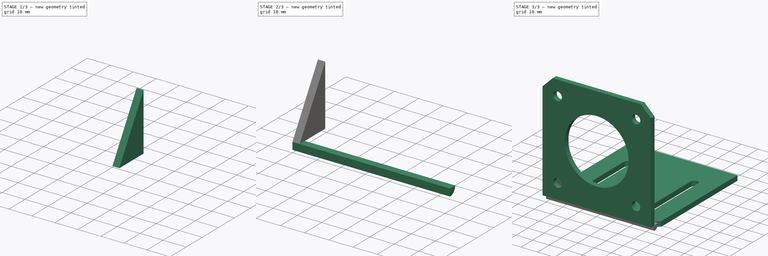
[diagram: build sequence overview — one tinted view per stage of 3, left to right]
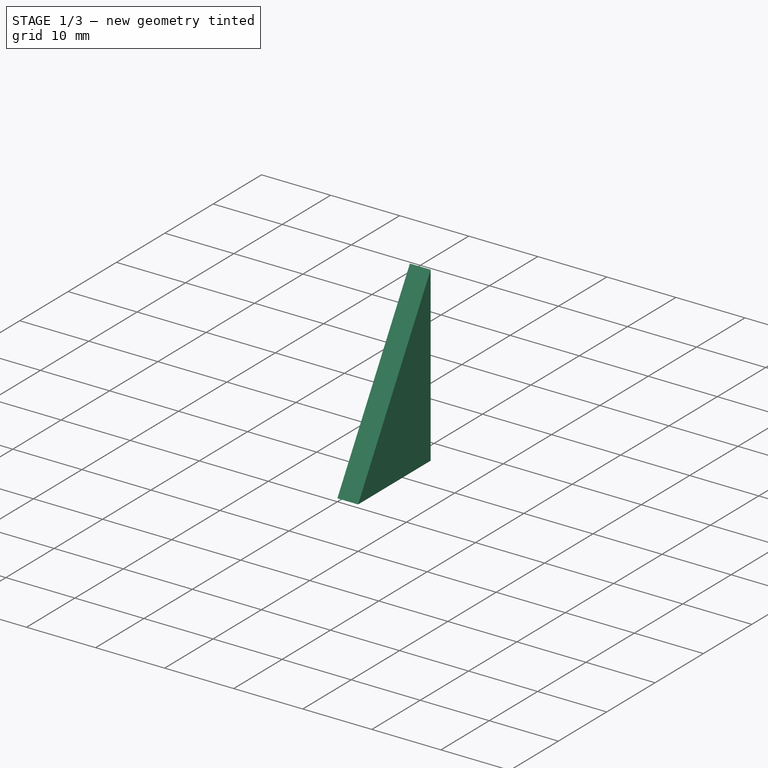
[diagram: stage 1 of 3 — iso view after this stage's code; geometry added in this stage tinted green]
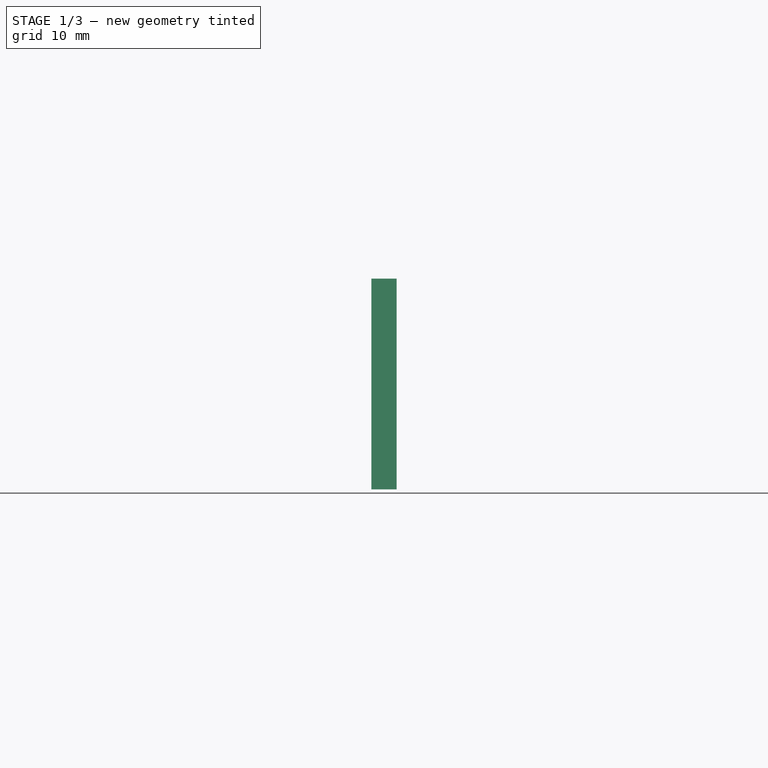
[diagram: stage 1 of 3 — front view after this stage's code; geometry added in this stage tinted green]
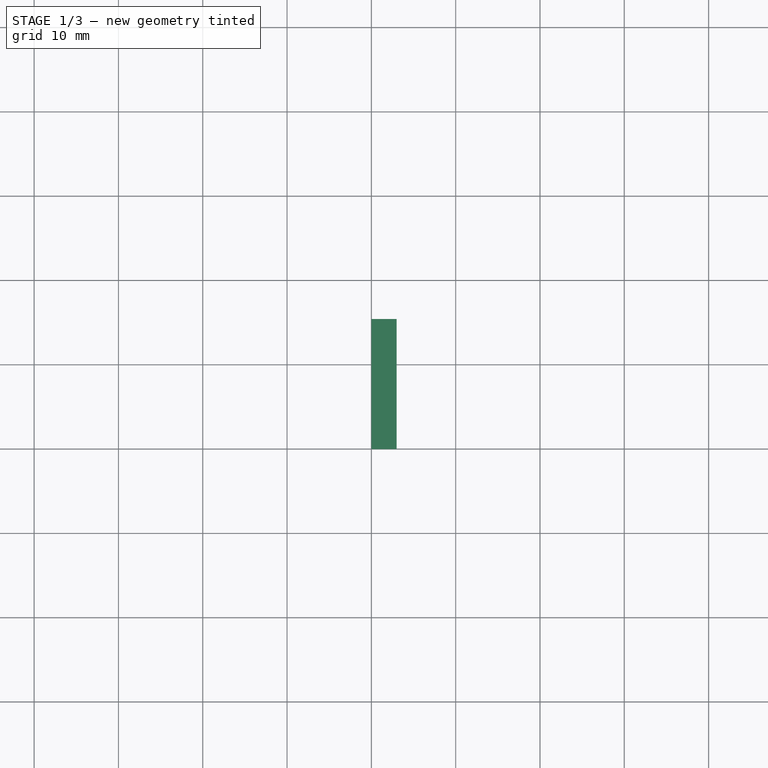
[diagram: stage 1 of 3 — top view after this stage's code; geometry added in this stage tinted green]
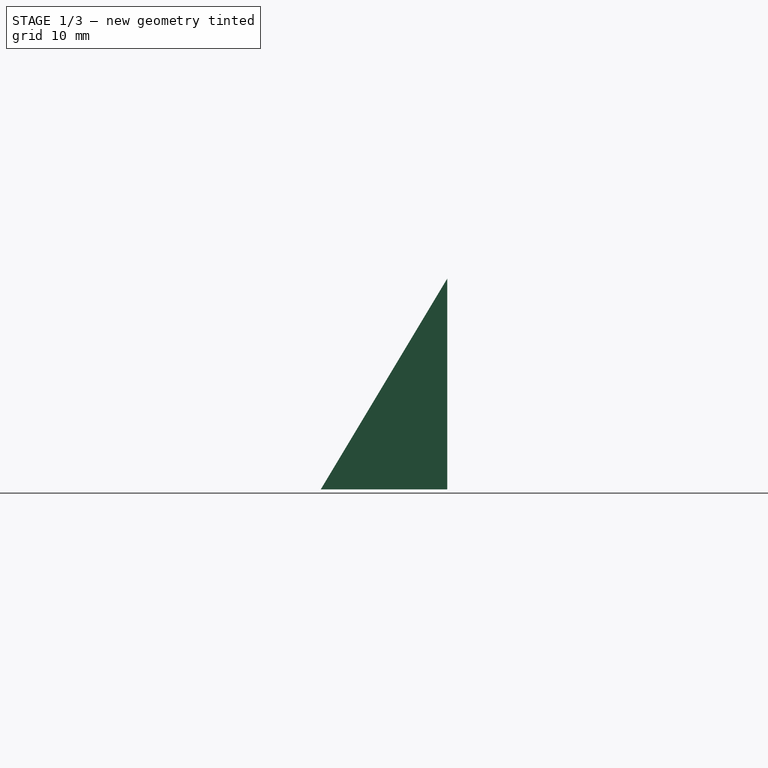
[diagram: stage 1 of 3 — right view after this stage's code; geometry added in this stage tinted green]
FCSTD DOCUMENT  (FreeCAD 1.0R39319 (Git))
Label: NEMA23-holder
License: All rights reserved
LicenseURL: http://en.wikipedia.org/wiki/All_rights_reserved
objects: Sketcher::SketchObject×5, PartDesign::Pad×5, PartDesign::Body×5, PartDesign::Fillet×1, App::Part×1
note: 33 computed .brp shape members not serialized (recipe doc carries the construction recipe); baked Part::Feature solids carry a one-line shape summary decoded from their .brp

FEATURE [PartDesign::Body] Body002  label="fillet"
  AllowCompound = false
  Group = -> [Sketch002,Pad002,Fillet]
  Origin = -> Origin003
  Placement = pos=(0,71,0) rot=(0,0,1;0rad)
  Tip = -> Fillet
FEATURE [Sketcher::SketchObject] Sketch003
  ArcFitTolerance = 1e-06
  AttachmentSupport = -> [YZ_Plane004]
  FullyConstrained = true
  MakeInternals = false
  MapMode = 5
  Placement = pos=(0,0,0) rot=(0.57735,0.57735,0.57735;2.0944rad)
  sketch-geometry (3):
    g0: LineSegment StartX=-1.8e-15 StartY=3 StartZ=0 EndX=15 EndY=3 EndZ=0
    g1: LineSegment StartX=15 StartY=3 StartZ=0 EndX=15 EndY=28 EndZ=0
    g2: LineSegment StartX=15 StartY=28 StartZ=0 EndX=-1.8e-15 EndY=3 EndZ=0
  constraints (9):
    c: Distance(g0) = 15
    c: PointOnObject(g0,g-2)
    c: Horizontal(g0)
    c: Distance(g1) = 25
    c: Vertical(g1)
    c: Coincident(g1,g0)
    c: Coincident(g2,g1)
    c: Coincident(g2,g0)
    c: Distance(g0,g-1) = 3
FEATURE [PartDesign::Pad] Pad003
  Direction = (1,0,0)
  Length = 3
  Length2 = 10
  Placement = pos=(0,0,0) rot=(1,1,1;2.0944rad)
  Profile = -> Sketch003
  ReferenceAxis = -> Sketch003 [N_Axis]
  Suppressed = false
  Type = 0
FEATURE [PartDesign::Body] Body003  label="support"
  AllowCompound = false
  Group = -> [Sketch003,Pad003]
  Origin = -> Origin004
  Placement = pos=(62,56,0) rot=(0,0,1;0rad)
  Tip = -> Pad003
FEATURE [Sketcher::SketchObject] Sketch004
  ArcFitTolerance = 1e-06
  AttachmentSupport = -> [YZ_Plane005]
  FullyConstrained = true
  MakeInternals = false
  MapMode = 5
  Placement = pos=(0,0,0) rot=(0.57735,0.57735,0.57735;2.0944rad)
  sketch-geometry (3):
    g0: LineSegment StartX=-1.8e-15 StartY=3 StartZ=0 EndX=15 EndY=3 EndZ=0
    g1: LineSegment StartX=15 StartY=3 StartZ=0 EndX=15 EndY=28 EndZ=0
    g2: LineSegment StartX=15 StartY=28 StartZ=0 EndX=-1.8e-15 EndY=3 EndZ=0
  constraints (9):
    c: Distance(g0) = 15
    c: PointOnObject(g0,g-2)
    c: Horizontal(g0)
    c: Distance(g1) = 25
    c: Vertical(g1)
    c: Coincident(g1,g0)
    c: Coincident(g2,g1)
    c: Coincident(g2,g0)
    c: Distance(g0,g-1) = 3
FEATURE [PartDesign::Pad] Pad004
  Direction = (1,0,0)
  Length = 3
  Length2 = 10
  Placement = pos=(0,0,0) rot=(1,1,1;2.0944rad)
  Profile = -> Sketch004
  ReferenceAxis = -> Sketch004 [N_Axis]
  Suppressed = false
  Type = 0
FEATURE [PartDesign::Body] Body004  label="support001"
  AllowCompound = false
  Group = -> [Sketch004,Pad004]
  Origin = -> Origin005
  Placement = pos=(0,56,0) rot=(0,0,1;0rad)
  Tip = -> Pad004
FEATURE [App::Part] Part  label="nema23-holder"
  Group = -> [Body,Body001,Body002,Body003,Body004]
  Origin = -> Origin
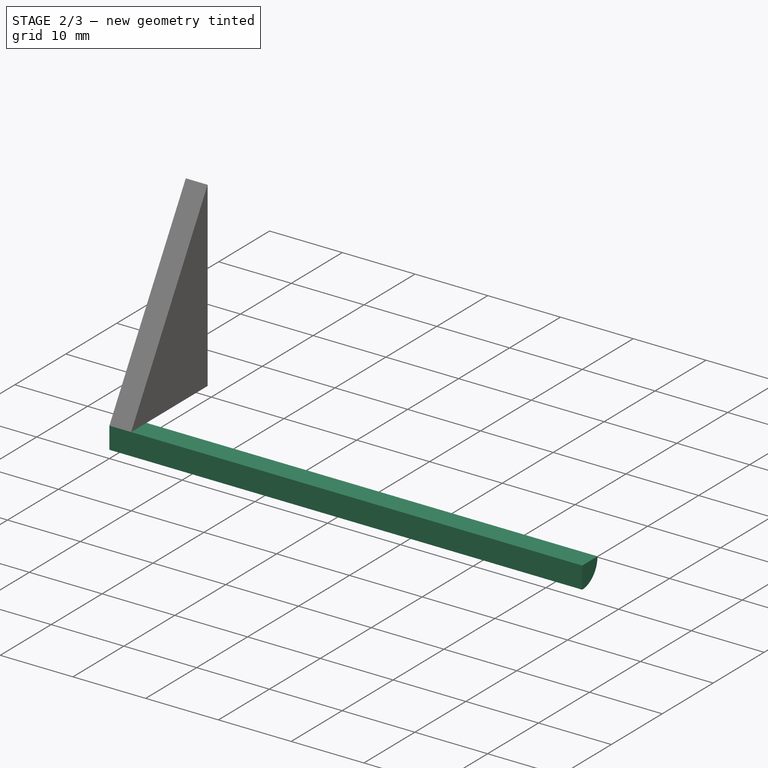
[diagram: stage 2 of 3 — iso view after this stage's code; geometry added in this stage tinted green]
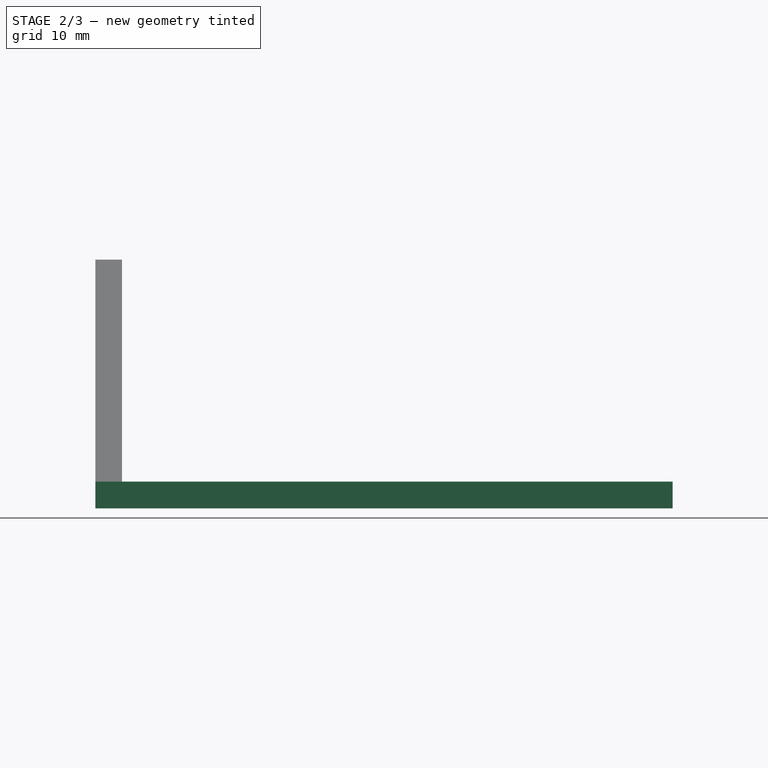
[diagram: stage 2 of 3 — front view after this stage's code; geometry added in this stage tinted green]
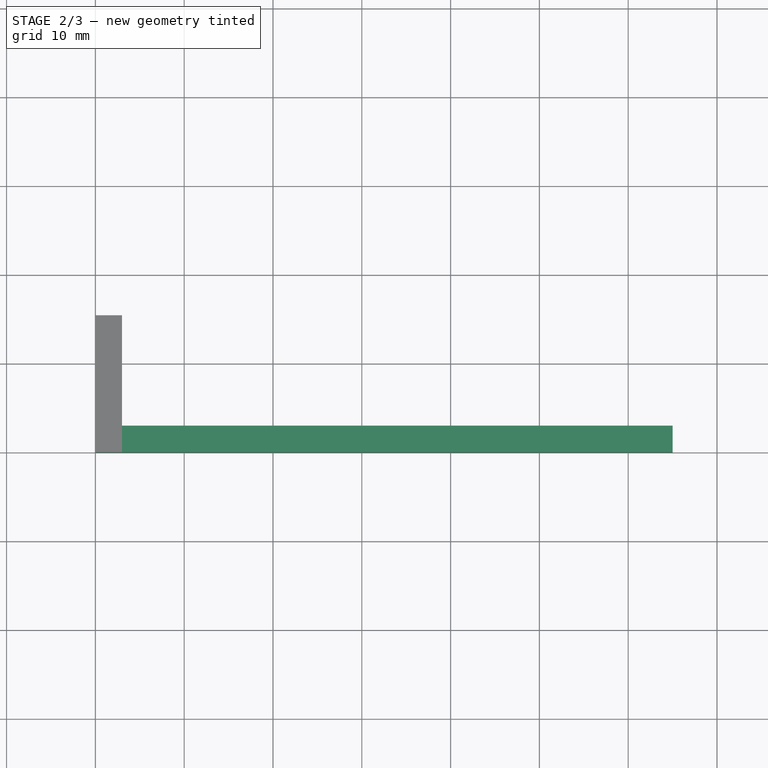
[diagram: stage 2 of 3 — top view after this stage's code; geometry added in this stage tinted green]
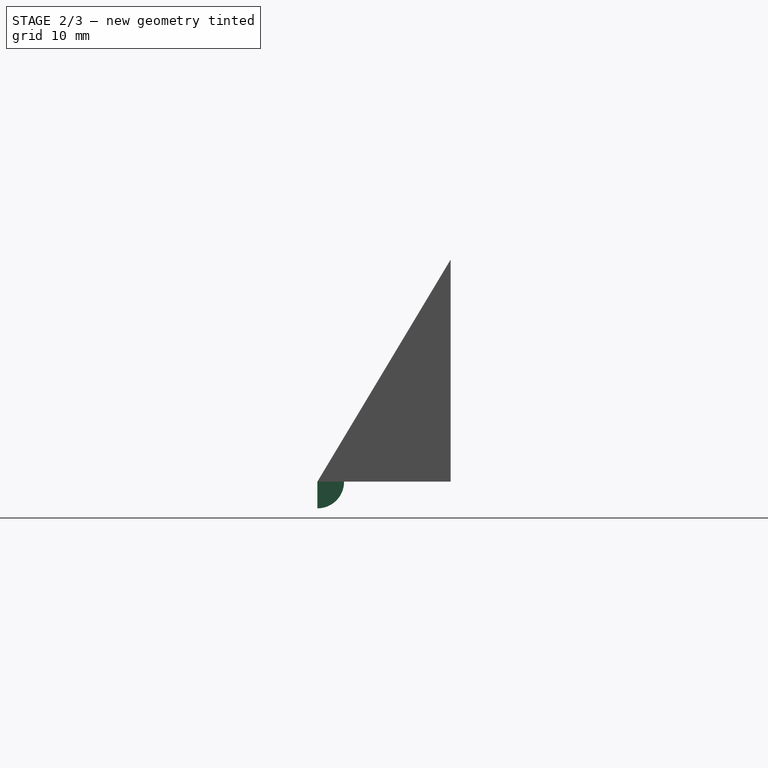
[diagram: stage 2 of 3 — right view after this stage's code; geometry added in this stage tinted green]
FEATURE [PartDesign::Body] Body001  label="motor-holes"
  AllowCompound = true
  Group = -> [Sketch001,Pad001]
  Origin = -> Origin002
  Placement = pos=(0,74,0) rot=(0,0,1;0rad)
  Tip = -> Pad001
FEATURE [Sketcher::SketchObject] Sketch002
  ArcFitTolerance = 1e-06
  AttachmentSupport = -> [YZ_Plane003]
  FullyConstrained = true
  MakeInternals = false
  MapMode = 5
  Placement = pos=(0,0,0) rot=(0.57735,0.57735,0.57735;2.0944rad)
  sketch-geometry (4):
    g0: LineSegment StartX=0 StartY=0 StartZ=0 EndX=3 EndY=0 EndZ=0
    g1: LineSegment StartX=3 StartY=0 StartZ=0 EndX=3 EndY=3 EndZ=0
    g2: LineSegment StartX=3 StartY=3 StartZ=0 EndX=0 EndY=3 EndZ=0
    g3: LineSegment StartX=0 StartY=3 StartZ=0 EndX=0 EndY=0 EndZ=0
  constraints (11):
    c: Coincident(g0,g1)
    c: Coincident(g1,g2)
    c: Coincident(g2,g3)
    c: Coincident(g3,g0)
    c: Horizontal(g0)
    c: Horizontal(g2)
    c: Vertical(g1)
    c: Vertical(g3)
    c: Distance(g1,g3) = 3
    c: Distance(g0,g2) = 3
    c: Coincident(g0,g-1)
FEATURE [PartDesign::Pad] Pad002
  Direction = (1,0,0)
  Length = 65
  Length2 = 10
  Placement = pos=(0,0,0) rot=(1,1,1;2.0944rad)
  Profile = -> Sketch002
  ReferenceAxis = -> Sketch002 [N_Axis]
  Suppressed = false
  Type = 0
FEATURE [PartDesign::Fillet] Fillet
  Base = -> Pad002 [Edge2]
  BaseFeature = -> Pad002
  Placement = pos=(0,0,0) rot=(1,1,1;2.0944rad)
  Radius = 2.99
  SupportTransform = false
  Suppressed = false
  UseAllEdges = false
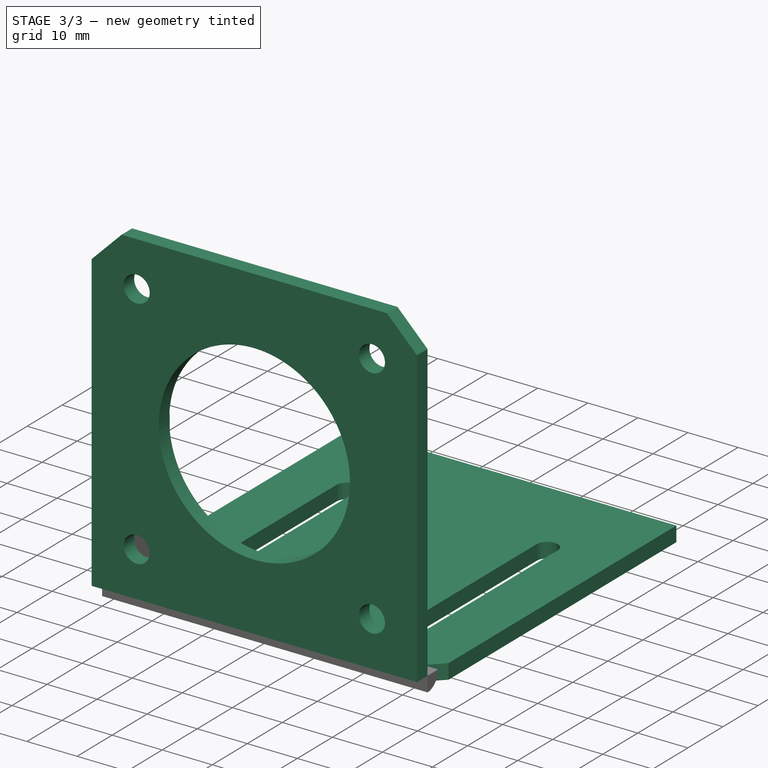
[diagram: stage 3 of 3 — iso view after this stage's code; geometry added in this stage tinted green]
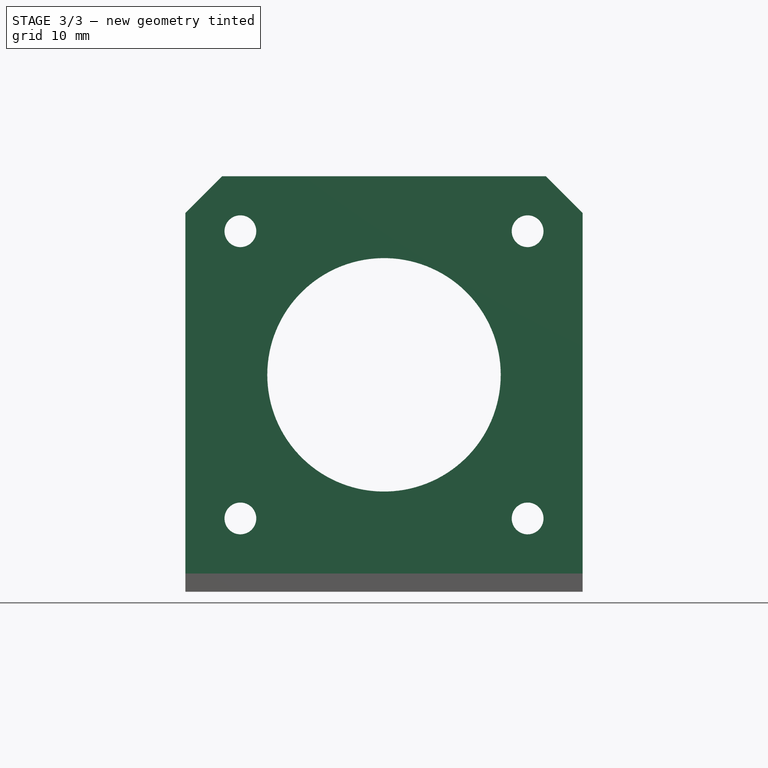
[diagram: stage 3 of 3 — front view after this stage's code; geometry added in this stage tinted green]
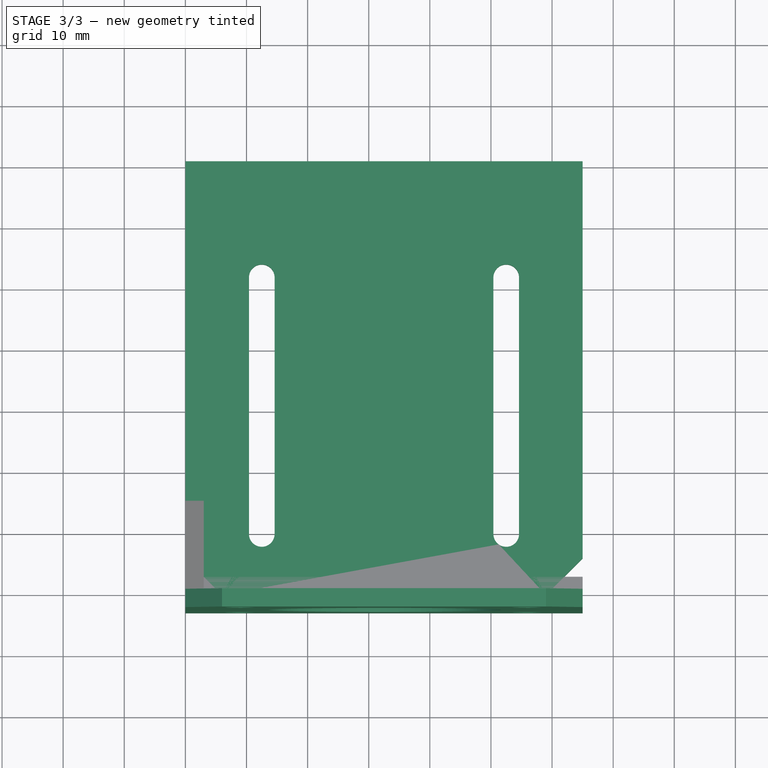
[diagram: stage 3 of 3 — top view after this stage's code; geometry added in this stage tinted green]
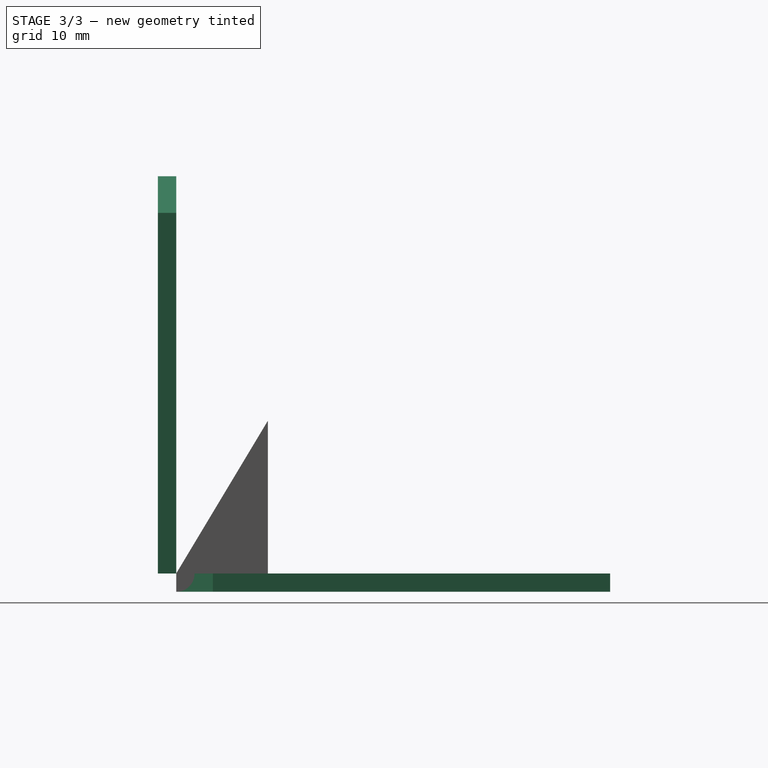
[diagram: stage 3 of 3 — right view after this stage's code; geometry added in this stage tinted green]
FEATURE [Sketcher::SketchObject] Sketch
  ArcFitTolerance = 1e-06
  AttachmentSupport = -> [XY_Plane001]
  FullyConstrained = false
  MakeInternals = false
  MapMode = 5
  sketch-geometry (15):
    g0: LineSegment StartX=65 StartY=6 StartZ=0 EndX=65 EndY=71 EndZ=0
    g1: LineSegment StartX=65 StartY=71 StartZ=0 EndX=0 EndY=71 EndZ=0
    g2: LineSegment StartX=0 StartY=71 StartZ=0 EndX=0 EndY=6 EndZ=0
    g3: LineSegment StartX=0 StartY=6 StartZ=0 EndX=6 EndY=0 EndZ=0
    g4: LineSegment StartX=65 StartY=6 StartZ=0 EndX=59 EndY=0 EndZ=0
    g5: LineSegment StartX=6 StartY=0 StartZ=0 EndX=59 EndY=0 EndZ=0
    g6: ArcOfCircle CenterX=52.5 CenterY=10 CenterZ=0 NormalX=0 NormalY=0 NormalZ=1 AngleXU=0 Radius=2.1 StartAngle=3.14159 EndAngle=6.28319
    g7: ArcOfCircle CenterX=52.5 CenterY=52 CenterZ=0 NormalX=0 NormalY=0 NormalZ=1 AngleXU=0 Radius=2.1 StartAngle=2.9e-15 EndAngle=3.14159
    g8: LineSegment StartX=50.4 StartY=10 StartZ=0 EndX=50.4 EndY=52 EndZ=0
    g9: LineSegment StartX=54.6 StartY=10 StartZ=0 EndX=54.6 EndY=52 EndZ=0
    g10: LineSegment [constr] StartX=32.5 StartY=71 StartZ=0 EndX=32.5 EndY=58.0464 EndZ=0
    g11: ArcOfCircle CenterX=12.5 CenterY=52 CenterZ=0 NormalX=0 NormalY=0 NormalZ=1 AngleXU=0 Radius=2.1 StartAngle=0 EndAngle=3.14159
    g12: LineSegment StartX=14.6 StartY=10 StartZ=0 EndX=14.6 EndY=52 EndZ=0
    g13: LineSegment StartX=10.4 StartY=10 StartZ=0 EndX=10.4 EndY=52 EndZ=0
    g14: ArcOfCircle CenterX=12.5 CenterY=10 CenterZ=0 NormalX=0 NormalY=0 NormalZ=1 AngleXU=0 Radius=2.1 StartAngle=3.14159 EndAngle=6.28319
  constraints (38):
    c: Coincident(g0,g1)
    c: Coincident(g1,g2)
    c: Horizontal(g1)
    c: Vertical(g0)
    c: Vertical(g2)
    c: Distance(g0,g2) = 65
    c: Distance(g2,g1) = 65
    c: DistanceY(g-1,g2) = 6
    c: PointOnObject(g1,g-2)
    c: Coincident(g3,g2)
    c: PointOnObject(g3,g-1)
    c: Coincident(g4,g0)
    c: PointOnObject(g4,g-1)
    c: Coincident(g5,g3)
    c: Coincident(g5,g4)
    c: Horizontal(g2,g0)
    c: Distance(g3,g-1) = 6
    c: DistanceX(g4,g0) = 6
    c: Tangent(g6,g8) = 1.5708
    c: Tangent(g6,g9) = -1.5708
    c: Tangent(g7,g8) = 1.5708
    c: Tangent(g7,g9) = -1.5708
    c: Equal(g6,g7)
    c: Vertical(g9)
    c: Distance(g6,g7) = 42
    c: Radius(g6) = 2.1
    c: Distance(g6,g5) = 10
    c: Symmetric(g1,g1,g10)
    c: Vertical(g10)
    c: DistanceX(g10,g7) = 20
    c: Tangent(g14,g12) = -1.5708
    c: Tangent(g14,g13) = 1.5708
    c: Tangent(g11,g12) = -1.5708
    c: Tangent(g11,g13) = 1.5708
    c: Equal(g14,g11)
    c: Vertical(g13)
    c: Distance(g14,g11) = 42
    c: Radius(g14) = 2.1
FEATURE [PartDesign::Pad] Pad
  Direction = (0,0,1)
  Length = 3
  Length2 = 10
  Profile = -> Sketch
  ReferenceAxis = -> Sketch [N_Axis]
  Suppressed = false
  Type = 0
FEATURE [PartDesign::Body] Body  label="slots"
  AllowCompound = true
  Group = -> [Sketch,Pad]
  Origin = -> Origin001
  Tip = -> Pad
FEATURE [Sketcher::SketchObject] Sketch001
  ArcFitTolerance = 1e-06
  AttachmentSupport = -> [XZ_Plane002]
  FullyConstrained = false
  MakeInternals = false
  MapMode = 5
  Placement = pos=(0,0,0) rot=(1,0,0;1.5708rad)
  sketch-geometry (14):
    g0: LineSegment StartX=7e-16 StartY=3 StartZ=0 EndX=65 EndY=3 EndZ=0
    g1: LineSegment StartX=65 StartY=3 StartZ=0 EndX=65 EndY=62 EndZ=0
    g2: LineSegment StartX=7e-16 StartY=62 StartZ=0 EndX=7e-16 EndY=3 EndZ=0
    g3: Circle CenterX=9 CenterY=59 CenterZ=0 NormalX=0 NormalY=0 NormalZ=1 AngleXU=0 Radius=2.6
    g4: Circle CenterX=9 CenterY=12 CenterZ=0 NormalX=0 NormalY=0 NormalZ=1 AngleXU=0 Radius=2.6
    g5: Circle CenterX=56 CenterY=59 CenterZ=0 NormalX=0 NormalY=0 NormalZ=1 AngleXU=0 Radius=2.6
    g6: Circle CenterX=56 CenterY=12 CenterZ=0 NormalX=0 NormalY=0 NormalZ=1 AngleXU=0 Radius=2.6
    g7: LineSegment StartX=6 StartY=68 StartZ=0 EndX=59 EndY=68 EndZ=0
    g8: LineSegment StartX=7e-16 StartY=62 StartZ=0 EndX=6 EndY=68 EndZ=0
    g9: LineSegment StartX=59 StartY=68 StartZ=0 EndX=65 EndY=62 EndZ=0
    g10: LineSegment [constr] StartX=32.5 StartY=3 StartZ=0 EndX=32.5 EndY=68 EndZ=0
    g11: LineSegment [constr] StartX=32.5 StartY=35.5 StartZ=0 EndX=0 EndY=35.5 EndZ=0
    g12: LineSegment [constr] StartX=32.5 StartY=35.5 StartZ=0 EndX=65 EndY=35.5 EndZ=0
    g13: Circle CenterX=32.5 CenterY=35.5 CenterZ=0 NormalX=0 NormalY=0 NormalZ=1 AngleXU=0 Radius=19.1
  constraints (39):
    c: Coincident(g0,g1)
    c: Coincident(g2,g0)
    c: Horizontal(g0)
    c: Vertical(g1)
    c: Vertical(g2)
    c: Distance(g1,g2) = 65
    c: Distance(g0,g2) = 59
    c: Distance(g0,g-1) = 3
    c: Diameter(g3) = 5.2
    c: Diameter(g4) = 5.2
    c: DistanceY(g4,g3) = 47
    c: Distance(g4,g0) = 9
    c: Vertical(g4,g3)
    c: Diameter(g5) = 5.2
    c: Diameter(g6) = 5.2
    c: DistanceY(g1,g1) = 59
    c: Distance(g7) = 53
    c: Horizontal(g7)
    c: Distance(g7,g0) = 65
    c: Coincident(g8,g2)
    c: DistanceX(g2,g8) = 6
    c: Coincident(g7,g8)
    c: Coincident(g9,g7)
    c: Coincident(g9,g1)
    c: DistanceX(g4,g6) = 47
    c: Vertical(g6,g5)
    c: DistanceX(g-1,g3) = 9
    c: Symmetric(g0,g0,g10)
    c: Vertical(g10)
    c: Distance(g4,g10) = 23.5
    c: DistanceY(g10,g10) = 65
    c: Distance(g11) = 32.5
    c: Symmetric(g10,g10,g11)
    c: Horizontal(g11)
    c: Coincident(g12,g11)
    c: PointOnObject(g12,g1)
    c: Horizontal(g12)
    c: Diameter(g13) = 38.2
    c: Coincident(g13,g11)
FEATURE [PartDesign::Pad] Pad001
  Direction = (0,-1,2e-16)
  Length = 3
  Length2 = 10
  Placement = pos=(0,0,0) rot=(1,0,0;1.5708rad)
  Profile = -> Sketch001
  ReferenceAxis = -> Sketch001 [N_Axis]
  Suppressed = false
  Type = 0
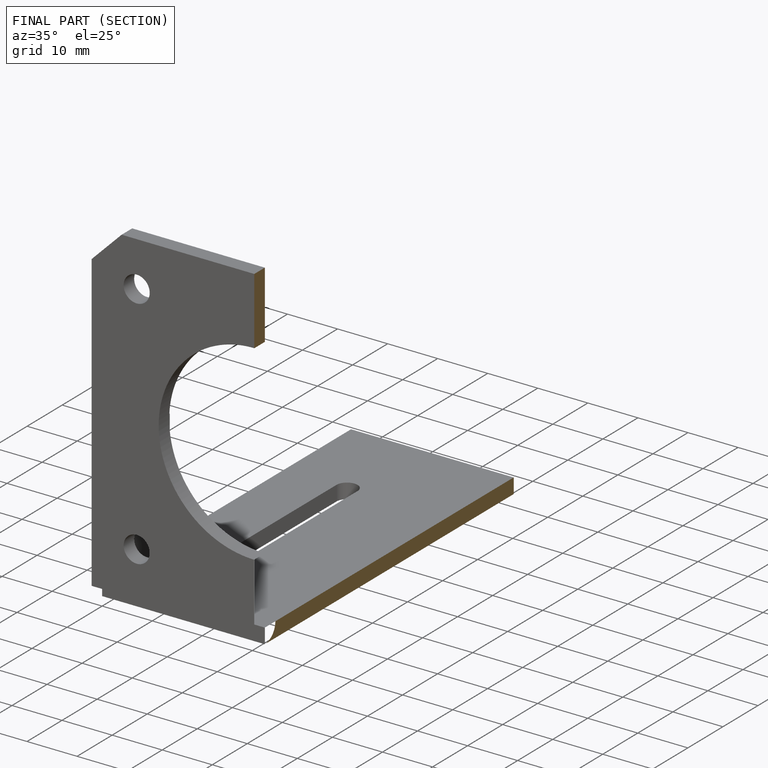
[diagram: finished part — half-section view (interior)]
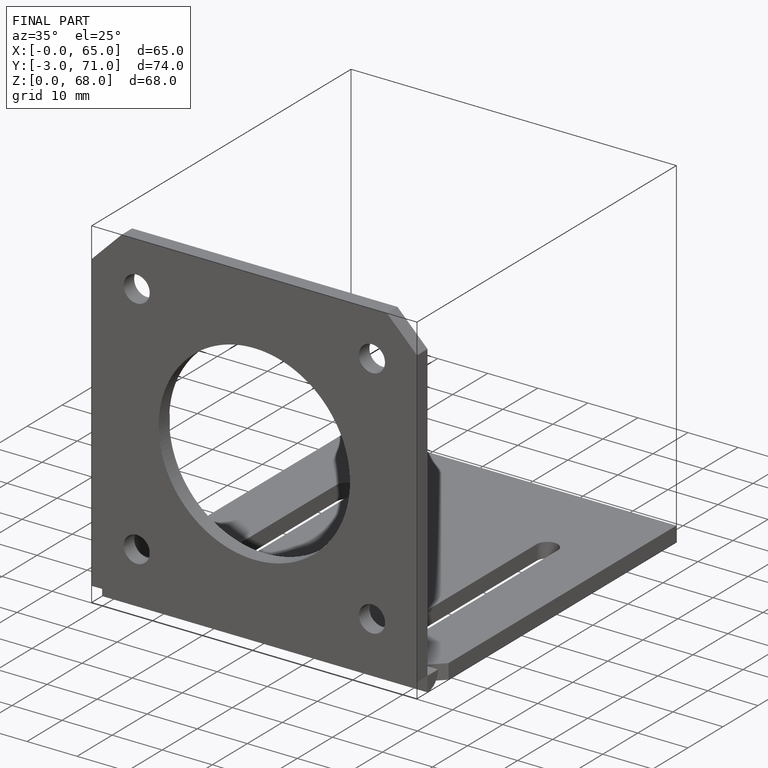
[diagram: finished part — iso view with bounding-box wireframe]
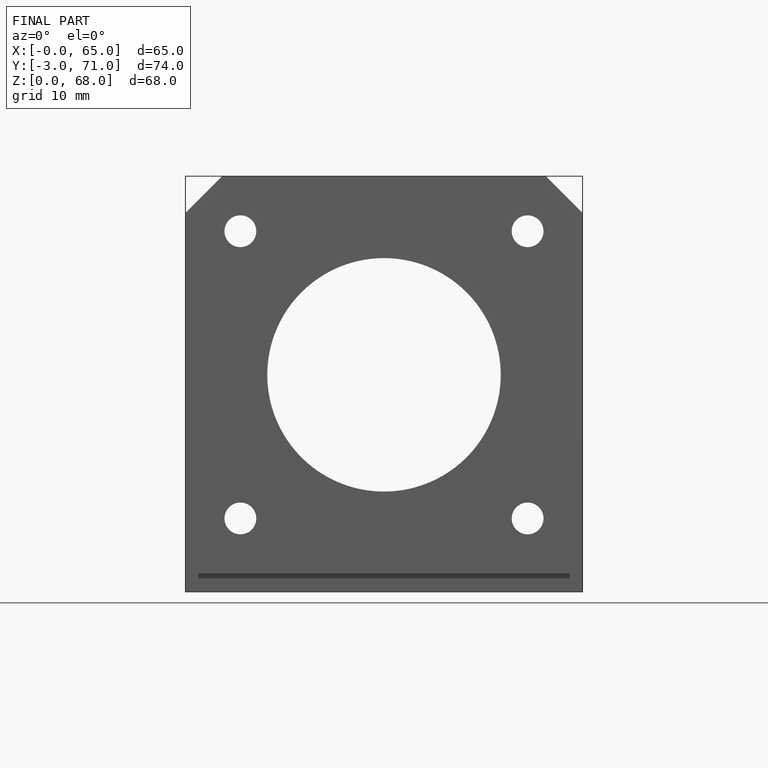
[diagram: finished part — front view with bounding-box wireframe]
